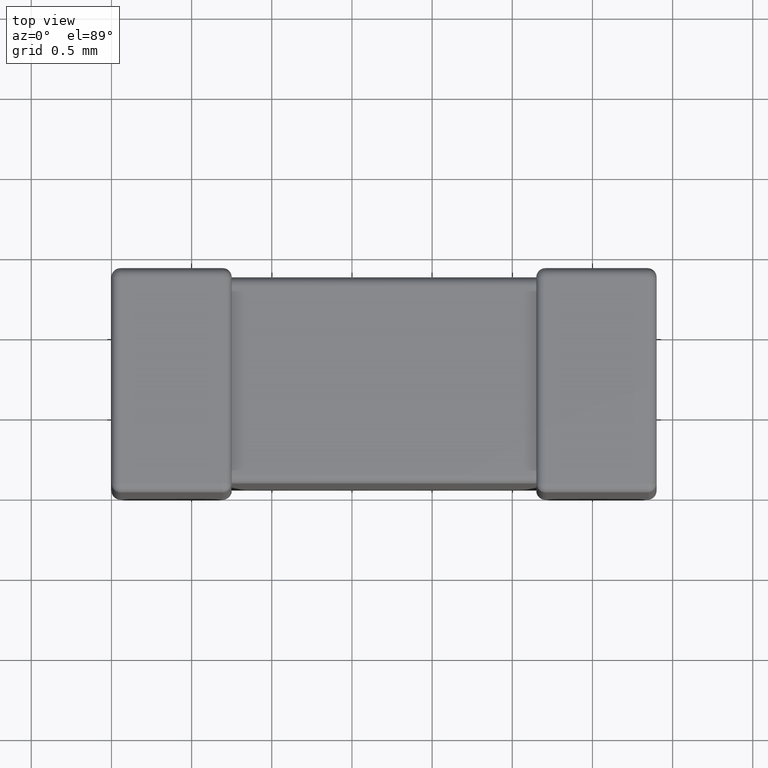
[diagram: clean part render]
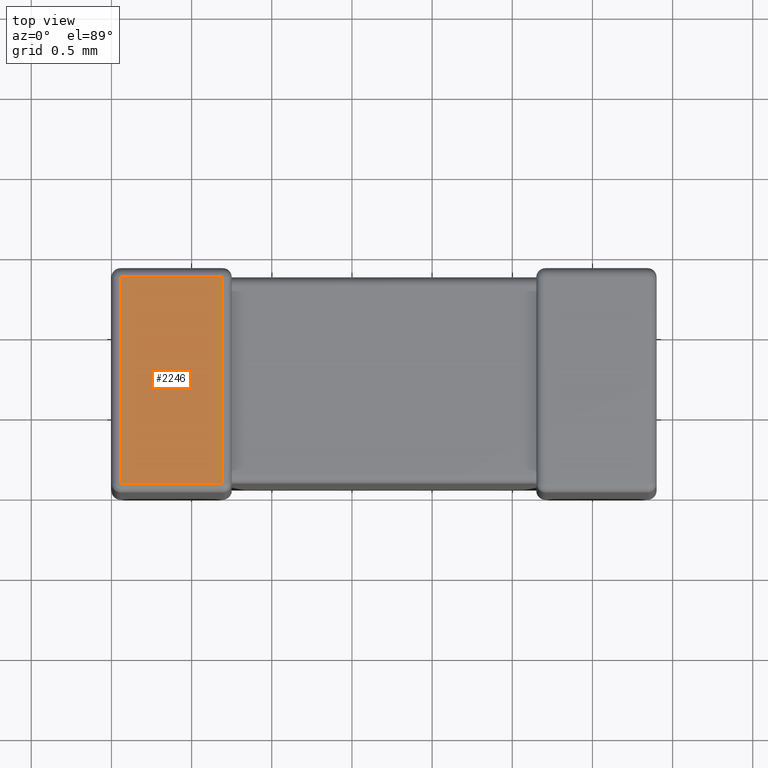
[diagram: same view with one face highlighted and labeled with its STEP entity id]
A machine part, top view. The second image highlights one B-rep face of the part: STEP entity #2246.
In plain terms, the highlighted planar face has unit normal (0, 0, -1).
Its self-contained STEP definition (entity closure, byte-faithful):
#76 = LINE ( 'NONE', #575, #3965 ) ;
#544 = DIRECTION ( 'NONE',  ( -3.861118847882867800E-015, 1.000000000000000000, -0.0000000000000000000 ) ) ;
#575 = CARTESIAN_POINT ( 'NONE',  ( 3.400000000000000400, 1.343839999999999900, 0.0000000000000000000 ) ) ;
#617 = VERTEX_POINT ( 'NONE', #2637 ) ;
#693 = EDGE_CURVE ( 'NONE', #617, #4202, #76, .T. ) ;
#731 = VECTOR ( 'NONE', #3430, 1000.000000000000000 ) ;
#909 = LINE ( 'NONE', #4194, #4664 ) ;
#1086 = CARTESIAN_POINT ( 'NONE',  ( 0.6938400000000050100, 0.05616000000000000200, 0.0000000000000000000 ) ) ;
#1314 = EDGE_CURVE ( 'NONE', #1490, #617, #4429, .T. ) ;
#1456 = AXIS2_PLACEMENT_3D ( 'NONE', #3789, #3808, #4125 ) ;
#1490 = VERTEX_POINT ( 'NONE', #1086 ) ;
#1559 = LINE ( 'NONE', #1982, #731 ) ;
#1888 = ORIENTED_EDGE ( 'NONE', *, *, #1314, .T. ) ;
#1915 = ORIENTED_EDGE ( 'NONE', *, *, #4075, .T. ) ;
#1982 = CARTESIAN_POINT ( 'NONE',  ( 0.05615999999999997400, 0.0000000000000000000, 0.0000000000000000000 ) ) ;
#2246 = ADVANCED_FACE ( 'NONE', ( #2744 ), #2728, .F. ) ;
#2637 = CARTESIAN_POINT ( 'NONE',  ( 0.6938400000000000100, 1.343839999999999900, 0.0000000000000000000 ) ) ;
#2728 = PLANE ( 'NONE',  #1456 ) ;
#2744 = FACE_OUTER_BOUND ( 'NONE', #4096, .T. ) ;
#3310 = CARTESIAN_POINT ( 'NONE',  ( 0.05615999999999997400, 1.343839999999999900, 0.0000000000000000000 ) ) ;
#3430 = DIRECTION ( 'NONE',  ( 0.0000000000000000000, -1.000000000000000000, 0.0000000000000000000 ) ) ;
#3478 = DIRECTION ( 'NONE',  ( 1.000000000000000000, -0.0000000000000000000, -0.0000000000000000000 ) ) ;
#3763 = CARTESIAN_POINT ( 'NONE',  ( 0.6938400000000050100, -1.044880538138668400E-014, 0.0000000000000000000 ) ) ;
#3776 = ORIENTED_EDGE ( 'NONE', *, *, #693, .T. ) ;
#3789 = CARTESIAN_POINT ( 'NONE',  ( 3.400000000000000400, 0.0000000000000000000, 0.0000000000000000000 ) ) ;
#3808 = DIRECTION ( 'NONE',  ( 0.0000000000000000000, 0.0000000000000000000, -1.000000000000000000 ) ) ;
#3933 = CARTESIAN_POINT ( 'NONE',  ( 0.05615999999999997400, 0.05616000000000000200, 0.0000000000000000000 ) ) ;
#3965 = VECTOR ( 'NONE', #4074, 1000.000000000000000 ) ;
#3981 = EDGE_CURVE ( 'NONE', #4665, #1490, #909, .T. ) ;
#4074 = DIRECTION ( 'NONE',  ( -1.000000000000000000, 0.0000000000000000000, 0.0000000000000000000 ) ) ;
#4075 = EDGE_CURVE ( 'NONE', #4202, #4665, #1559, .T. ) ;
#4096 = EDGE_LOOP ( 'NONE', ( #4308, #1888, #3776, #1915 ) ) ;
#4125 = DIRECTION ( 'NONE',  ( -1.000000000000000000, 0.0000000000000000000, -0.0000000000000000000 ) ) ;
#4143 = VECTOR ( 'NONE', #544, 1000.000000000000000 ) ;
#4194 = CARTESIAN_POINT ( 'NONE',  ( 3.400000000000000400, 0.05616000000000000200, 0.0000000000000000000 ) ) ;
#4202 = VERTEX_POINT ( 'NONE', #3310 ) ;
#4308 = ORIENTED_EDGE ( 'NONE', *, *, #3981, .T. ) ;
#4429 = LINE ( 'NONE', #3763, #4143 ) ;
#4664 = VECTOR ( 'NONE', #3478, 1000.000000000000000 ) ;
#4665 = VERTEX_POINT ( 'NONE', #3933 ) ;